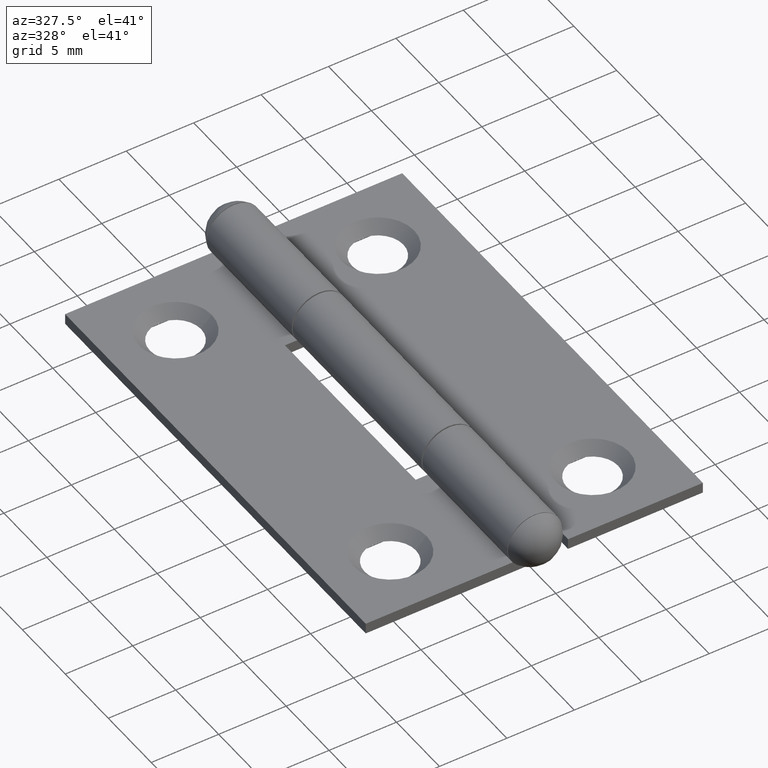
[diagram: clean part render]
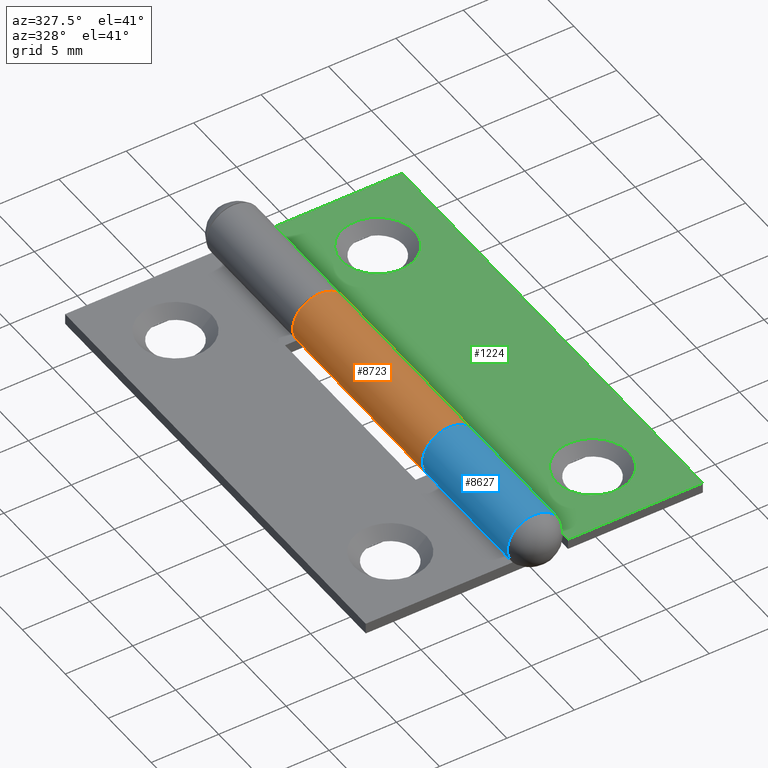
[diagram: same view with three faces highlighted in distinct colors, each labeled with its STEP entity id]
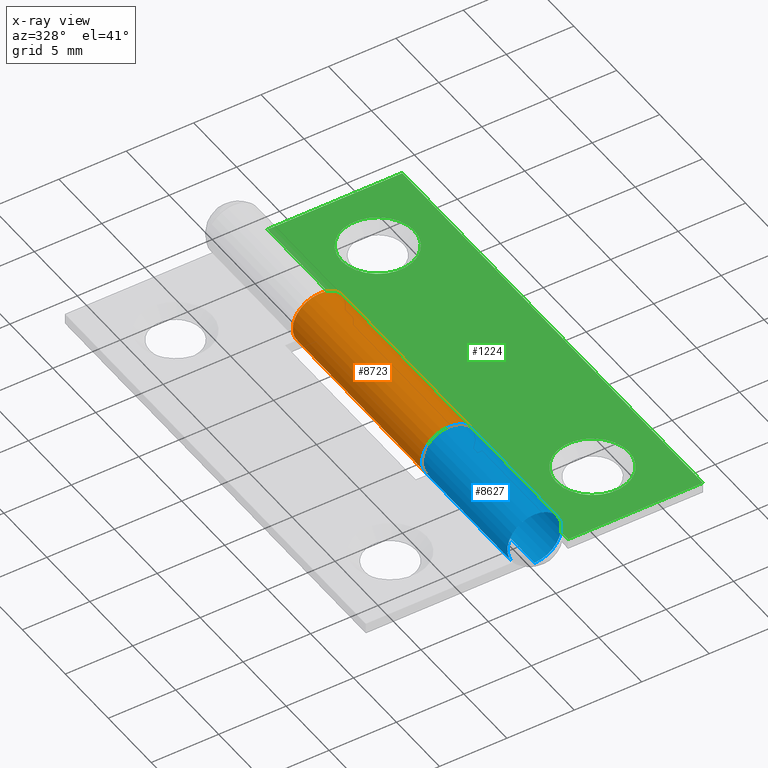
[diagram: x-ray of the same camera — body ghosted, the three highlighted faces saturated]
A machine part, auxiliary view with three faces highlighted in distinct colors.
The next image is the same camera in x-ray (body ghosted, the three faces saturated) — at least one of them is partly hidden behind the body in this view.
Their STEP definitions:

[orange] entity #8723 — the highlighted cylindrical surface (edge-blend (fillet) strip) has radius 2 mm, axis along (0, 1, -0).
#173 = DIRECTION ( 'NONE',  ( 0.000000000000000000, -1.000000000000000000, 0.000000000000000000 ) ) ;
#708 = DIRECTION ( 'NONE',  ( 0.000000000000000000, 0.000000000000000000, 1.000000000000000000 ) ) ;
#985 = CARTESIAN_POINT ( 'NONE',  ( -2.000000000000000000, 17.50000000000000000, 2.000000000000000444 ) ) ;
#1196 = VERTEX_POINT ( 'NONE', #5011 ) ;
#1353 = DIRECTION ( 'NONE',  ( 0.000000000000000000, 1.000000000000000000, -0.000000000000000000 ) ) ;
#1492 = ORIENTED_EDGE ( 'NONE', *, *, #3329, .T. ) ;
#1827 = ORIENTED_EDGE ( 'NONE', *, *, #4081, .F. ) ;
#2394 = VERTEX_POINT ( 'NONE', #6421 ) ;
#2768 = VERTEX_POINT ( 'NONE', #3055 ) ;
#3055 = CARTESIAN_POINT ( 'NONE',  ( -2.000000000000000000, -7.500000000000000000, 2.602085213965210149E-16 ) ) ;
#3209 = DIRECTION ( 'NONE',  ( 0.000000000000000000, 0.000000000000000000, -1.000000000000000000 ) ) ;
#3218 = CIRCLE ( 'NONE', #4766, 2.000000000000000000 ) ;
#3329 = EDGE_CURVE ( 'NONE', #1196, #2768, #8356, .T. ) ;
#3606 = ORIENTED_EDGE ( 'NONE', *, *, #7901, .T. ) ;
#3720 = VECTOR ( 'NONE', #4532, 1000.000000000000000 ) ;
#3817 = CARTESIAN_POINT ( 'NONE',  ( -2.000000000000000000, -7.500000000000000000, 2.000000000000000444 ) ) ;
#4069 = LINE ( 'NONE', #5968, #3720 ) ;
#4081 = EDGE_CURVE ( 'NONE', #9902, #2768, #8696, .T. ) ;
#4532 = DIRECTION ( 'NONE',  ( -0.000000000000000000, -1.000000000000000000, -0.000000000000000000 ) ) ;
#4766 = AXIS2_PLACEMENT_3D ( 'NONE', #8122, #173, #5684 ) ;
#5011 = CARTESIAN_POINT ( 'NONE',  ( -3.670329308849006544, -7.500000000000000000, 0.9000000000000001332 ) ) ;
#5228 = EDGE_LOOP ( 'NONE', ( #1827, #3606, #7404, #1492 ) ) ;
#5390 = AXIS2_PLACEMENT_3D ( 'NONE', #985, #7926, #3209 ) ;
#5684 = DIRECTION ( 'NONE',  ( 0.000000000000000000, 0.000000000000000000, -1.000000000000000000 ) ) ;
#5765 = CARTESIAN_POINT ( 'NONE',  ( -2.000000000000000000, 7.500000000000000000, 2.602085213965210149E-16 ) ) ;
#5879 = VECTOR ( 'NONE', #7444, 1000.000000000000000 ) ;
#5968 = CARTESIAN_POINT ( 'NONE',  ( -3.670329308849006544, 17.50000000000000000, 0.9000000000000002442 ) ) ;
#6123 = CARTESIAN_POINT ( 'NONE',  ( -2.000000000000000000, 17.50000000000000000, 0.000000000000000000 ) ) ;
#6421 = CARTESIAN_POINT ( 'NONE',  ( -3.670329308849006544, 7.500000000000000000, 0.9000000000000001332 ) ) ;
#6567 = CYLINDRICAL_SURFACE ( 'NONE', #5390, 2.000000000000000000 ) ;
#7404 = ORIENTED_EDGE ( 'NONE', *, *, #7635, .T. ) ;
#7444 = DIRECTION ( 'NONE',  ( -0.000000000000000000, -1.000000000000000000, -0.000000000000000000 ) ) ;
#7635 = EDGE_CURVE ( 'NONE', #2394, #1196, #4069, .T. ) ;
#7901 = EDGE_CURVE ( 'NONE', #9902, #2394, #3218, .T. ) ;
#7926 = DIRECTION ( 'NONE',  ( -0.000000000000000000, -1.000000000000000000, -0.000000000000000000 ) ) ;
#8122 = CARTESIAN_POINT ( 'NONE',  ( -2.000000000000000000, 7.500000000000000000, 2.000000000000000444 ) ) ;
#8356 = CIRCLE ( 'NONE', #8413, 1.999999999999999556 ) ;
#8413 = AXIS2_PLACEMENT_3D ( 'NONE', #3817, #1353, #708 ) ;
#8696 = LINE ( 'NONE', #6123, #5879 ) ;
#8723 = ADVANCED_FACE ( 'NONE', ( #9755 ), #6567, .T. ) ;
#9755 = FACE_OUTER_BOUND ( 'NONE', #5228, .T. ) ;
#9902 = VERTEX_POINT ( 'NONE', #5765 ) ;

[blue] entity #8627 — the highlighted cylindrical surface (edge-blend (fillet) strip) has radius 2 mm, axis along (-0, -1, -0).
#350 = EDGE_CURVE ( 'NONE', #6808, #6335, #7986, .T. ) ;
#388 = ORIENTED_EDGE ( 'NONE', *, *, #2989, .F. ) ;
#473 = DIRECTION ( 'NONE',  ( 0.000000000000000000, 0.000000000000000000, -1.000000000000000000 ) ) ;
#617 = CARTESIAN_POINT ( 'NONE',  ( -3.670329308849006544, -17.50000000000000000, 0.9000000000000002442 ) ) ;
#782 = CARTESIAN_POINT ( 'NONE',  ( -2.000000000000000000, 17.50000000000000000, 2.000000000000000444 ) ) ;
#1370 = FACE_OUTER_BOUND ( 'NONE', #10060, .T. ) ;
#1432 = CARTESIAN_POINT ( 'NONE',  ( -2.000000000000000000, -7.599999999999998757, 2.000000000000000444 ) ) ;
#1848 = CIRCLE ( 'NONE', #7652, 2.000000000000000000 ) ;
#2292 = VECTOR ( 'NONE', #3418, 1000.000000000000000 ) ;
#2555 = LINE ( 'NONE', #4059, #4710 ) ;
#2575 = VERTEX_POINT ( 'NONE', #617 ) ;
#2989 = EDGE_CURVE ( 'NONE', #6808, #8183, #2555, .T. ) ;
#3160 = DIRECTION ( 'NONE',  ( -0.000000000000000000, -1.000000000000000000, -0.000000000000000000 ) ) ;
#3168 = EDGE_CURVE ( 'NONE', #6335, #2575, #7595, .T. ) ;
#3407 = CARTESIAN_POINT ( 'NONE',  ( -2.000000000000000000, -17.50000000000000000, 0.000000000000000000 ) ) ;
#3418 = DIRECTION ( 'NONE',  ( -0.000000000000000000, -1.000000000000000000, -0.000000000000000000 ) ) ;
#3652 = ORIENTED_EDGE ( 'NONE', *, *, #9945, .T. ) ;
#4055 = AXIS2_PLACEMENT_3D ( 'NONE', #782, #3160, #6345 ) ;
#4059 = CARTESIAN_POINT ( 'NONE',  ( -2.000000000000000000, 17.50000000000000000, 0.000000000000000000 ) ) ;
#4664 = CYLINDRICAL_SURFACE ( 'NONE', #4055, 2.000000000000000000 ) ;
#4710 = VECTOR ( 'NONE', #5665, 1000.000000000000000 ) ;
#5031 = CARTESIAN_POINT ( 'NONE',  ( -3.670329308849006544, 17.50000000000000000, 0.9000000000000002442 ) ) ;
#5300 = ORIENTED_EDGE ( 'NONE', *, *, #350, .T. ) ;
#5619 = AXIS2_PLACEMENT_3D ( 'NONE', #1432, #7758, #8530 ) ;
#5665 = DIRECTION ( 'NONE',  ( -0.000000000000000000, -1.000000000000000000, -0.000000000000000000 ) ) ;
#6335 = VERTEX_POINT ( 'NONE', #7345 ) ;
#6345 = DIRECTION ( 'NONE',  ( 0.000000000000000000, 0.000000000000000000, -1.000000000000000000 ) ) ;
#6808 = VERTEX_POINT ( 'NONE', #9585 ) ;
#7345 = CARTESIAN_POINT ( 'NONE',  ( -3.670329308849006544, -7.599999999999998757, 0.9000000000000001332 ) ) ;
#7595 = LINE ( 'NONE', #5031, #2292 ) ;
#7622 = DIRECTION ( 'NONE',  ( 0.000000000000000000, 1.000000000000000000, -0.000000000000000000 ) ) ;
#7652 = AXIS2_PLACEMENT_3D ( 'NONE', #8382, #7622, #473 ) ;
#7758 = DIRECTION ( 'NONE',  ( 0.000000000000000000, -1.000000000000000000, 0.000000000000000000 ) ) ;
#7986 = CIRCLE ( 'NONE', #5619, 2.000000000000000000 ) ;
#8183 = VERTEX_POINT ( 'NONE', #3407 ) ;
#8382 = CARTESIAN_POINT ( 'NONE',  ( -2.000000000000000000, -17.50000000000000000, 2.000000000000000444 ) ) ;
#8530 = DIRECTION ( 'NONE',  ( 0.000000000000000000, 0.000000000000000000, -1.000000000000000000 ) ) ;
#8627 = ADVANCED_FACE ( 'NONE', ( #1370 ), #4664, .T. ) ;
#8685 = ORIENTED_EDGE ( 'NONE', *, *, #3168, .T. ) ;
#9585 = CARTESIAN_POINT ( 'NONE',  ( -2.000000000000000000, -7.599999999999999645, 2.602085213965211135E-16 ) ) ;
#9945 = EDGE_CURVE ( 'NONE', #2575, #8183, #1848, .T. ) ;
#10060 = EDGE_LOOP ( 'NONE', ( #388, #5300, #8685, #3652 ) ) ;

[green] entity #1224 — the highlighted planar face has unit normal (0, -0, -1).
#119 = VERTEX_POINT ( 'NONE', #9287 ) ;
#354 = CARTESIAN_POINT ( 'NONE',  ( -2.000000000000000000, 17.50000000000000000, 0.8000000000000001554 ) ) ;
#587 = CARTESIAN_POINT ( 'NONE',  ( -2.000000000000000000, -17.50000000000000000, 0.8000000000000001554 ) ) ;
#1083 = ORIENTED_EDGE ( 'NONE', *, *, #5828, .T. ) ;
#1192 = LINE ( 'NONE', #1929, #2545 ) ;
#1224 = ADVANCED_FACE ( 'NONE', ( #8324, #7937, #7580 ), #9923, .F. ) ;
#1536 = DIRECTION ( 'NONE',  ( -1.000000000000000000, 0.000000000000000000, 1.204669080539452055E-16 ) ) ;
#1617 = AXIS2_PLACEMENT_3D ( 'NONE', #10051, #7012, #2194 ) ;
#1751 = DIRECTION ( 'NONE',  ( -0.000000000000000000, -1.000000000000000000, -0.000000000000000000 ) ) ;
#1786 = CARTESIAN_POINT ( 'NONE',  ( -2.000000000000000000, 17.50000000000000000, 0.8000000000000001554 ) ) ;
#1792 = ORIENTED_EDGE ( 'NONE', *, *, #4288, .F. ) ;
#1929 = CARTESIAN_POINT ( 'NONE',  ( -2.000000000000000000, -7.500000000000000000, 0.8000000000000001554 ) ) ;
#2093 = DIRECTION ( 'NONE',  ( 1.000000000000000000, -0.000000000000000000, -1.127570259384924611E-16 ) ) ;
#2116 = EDGE_LOOP ( 'NONE', ( #8781 ) ) ;
#2117 = CARTESIAN_POINT ( 'NONE',  ( -2.000000000000000000, 7.500000000000000000, 0.8000000000000001554 ) ) ;
#2130 = AXIS2_PLACEMENT_3D ( 'NONE', #6077, #8606, #1536 ) ;
#2179 = CARTESIAN_POINT ( 'NONE',  ( -12.19999999999999929, 12.49999999999999822, 0.8000000000000013767 ) ) ;
#2194 = DIRECTION ( 'NONE',  ( -1.000000000000000000, 0.000000000000000000, 1.204669080539452055E-16 ) ) ;
#2213 = VERTEX_POINT ( 'NONE', #2179 ) ;
#2402 = ORIENTED_EDGE ( 'NONE', *, *, #7692, .T. ) ;
#2515 = EDGE_CURVE ( 'NONE', #9634, #4622, #1192, .T. ) ;
#2545 = VECTOR ( 'NONE', #3503, 1000.000000000000000 ) ;
#2690 = DIRECTION ( 'NONE',  ( 0.000000000000000000, 1.000000000000000000, 0.000000000000000000 ) ) ;
#2938 = CARTESIAN_POINT ( 'NONE',  ( -14.50000000000000000, 17.50000000000000000, 0.8000000000000015987 ) ) ;
#3065 = CARTESIAN_POINT ( 'NONE',  ( -4.499999999999995559, 17.50000000000000000, 0.8000000000000004885 ) ) ;
#3200 = EDGE_CURVE ( 'NONE', #9182, #119, #6021, .T. ) ;
#3503 = DIRECTION ( 'NONE',  ( 1.000000000000000000, -0.000000000000000000, -1.127570259384924611E-16 ) ) ;
#3542 = CARTESIAN_POINT ( 'NONE',  ( -4.500000000000002665, -17.50000000000000000, 0.8000000000000004885 ) ) ;
#4061 = CARTESIAN_POINT ( 'NONE',  ( -2.000000000000000000, 17.50000000000000000, 0.8000000000000001554 ) ) ;
#4288 = EDGE_CURVE ( 'NONE', #7782, #4622, #4983, .T. ) ;
#4354 = LINE ( 'NONE', #5185, #4469 ) ;
#4469 = VECTOR ( 'NONE', #2690, 1000.000000000000000 ) ;
#4488 = ORIENTED_EDGE ( 'NONE', *, *, #5199, .T. ) ;
#4530 = EDGE_CURVE ( 'NONE', #119, #7979, #7346, .T. ) ;
#4622 = VERTEX_POINT ( 'NONE', #8894 ) ;
#4983 = LINE ( 'NONE', #1786, #9938 ) ;
#4999 = EDGE_CURVE ( 'NONE', #5163, #5163, #7330, .T. ) ;
#5102 = DIRECTION ( 'NONE',  ( -0.000000000000000000, -1.000000000000000000, -0.000000000000000000 ) ) ;
#5163 = VERTEX_POINT ( 'NONE', #6891 ) ;
#5185 = CARTESIAN_POINT ( 'NONE',  ( -4.500000000000000888, 17.50000000000000000, 0.8000000000000004885 ) ) ;
#5199 = EDGE_CURVE ( 'NONE', #7888, #6572, #4354, .T. ) ;
#5586 = CIRCLE ( 'NONE', #1617, 2.699999999999993960 ) ;
#5666 = DIRECTION ( 'NONE',  ( 1.000000000000000000, -0.000000000000000000, -1.127570259384924611E-16 ) ) ;
#5767 = ORIENTED_EDGE ( 'NONE', *, *, #4530, .T. ) ;
#5828 = EDGE_CURVE ( 'NONE', #2213, #2213, #5586, .T. ) ;
#5997 = ORIENTED_EDGE ( 'NONE', *, *, #6065, .F. ) ;
#6021 = LINE ( 'NONE', #7599, #6255 ) ;
#6065 = EDGE_CURVE ( 'NONE', #9182, #6572, #6104, .T. ) ;
#6077 = CARTESIAN_POINT ( 'NONE',  ( -9.500000000000001776, -12.50000000000000178, 0.8000000000000010436 ) ) ;
#6080 = EDGE_LOOP ( 'NONE', ( #2402, #4488, #5997, #10148, #5767, #6310, #9299, #1792 ) ) ;
#6104 = LINE ( 'NONE', #4061, #7185 ) ;
#6202 = LINE ( 'NONE', #2117, #8770 ) ;
#6255 = VECTOR ( 'NONE', #5102, 1000.000000000000000 ) ;
#6310 = ORIENTED_EDGE ( 'NONE', *, *, #6559, .T. ) ;
#6559 = EDGE_CURVE ( 'NONE', #7979, #9634, #9638, .T. ) ;
#6572 = VERTEX_POINT ( 'NONE', #9263 ) ;
#6662 = DIRECTION ( 'NONE',  ( -1.127570259384924611E-16, 0.000000000000000000, -1.000000000000000000 ) ) ;
#6837 = VECTOR ( 'NONE', #10092, 1000.000000000000000 ) ;
#6891 = CARTESIAN_POINT ( 'NONE',  ( -12.19999999999999574, -12.50000000000000178, 0.8000000000000013767 ) ) ;
#7004 = CARTESIAN_POINT ( 'NONE',  ( -4.500000000000000000, -7.500000000000000000, 0.8000000000000003775 ) ) ;
#7012 = DIRECTION ( 'NONE',  ( -1.127570259384924611E-16, 0.000000000000000000, -1.000000000000000000 ) ) ;
#7185 = VECTOR ( 'NONE', #5666, 1000.000000000000000 ) ;
#7330 = CIRCLE ( 'NONE', #2130, 2.699999999999993960 ) ;
#7346 = LINE ( 'NONE', #587, #8209 ) ;
#7544 = AXIS2_PLACEMENT_3D ( 'NONE', #354, #6662, #9102 ) ;
#7580 = FACE_OUTER_BOUND ( 'NONE', #6080, .T. ) ;
#7599 = CARTESIAN_POINT ( 'NONE',  ( -14.50000000000000000, 17.50000000000000000, 0.8000000000000015987 ) ) ;
#7636 = DIRECTION ( 'NONE',  ( -1.000000000000000000, 0.000000000000000000, 1.127570259384924611E-16 ) ) ;
#7687 = CARTESIAN_POINT ( 'NONE',  ( -4.500000000000000000, 7.500000000000000000, 0.8000000000000003775 ) ) ;
#7692 = EDGE_CURVE ( 'NONE', #7782, #7888, #6202, .T. ) ;
#7782 = VERTEX_POINT ( 'NONE', #9241 ) ;
#7888 = VERTEX_POINT ( 'NONE', #7687 ) ;
#7937 = FACE_BOUND ( 'NONE', #9622, .T. ) ;
#7979 = VERTEX_POINT ( 'NONE', #3542 ) ;
#8209 = VECTOR ( 'NONE', #2093, 1000.000000000000000 ) ;
#8324 = FACE_BOUND ( 'NONE', #2116, .T. ) ;
#8606 = DIRECTION ( 'NONE',  ( -1.127570259384924611E-16, 0.000000000000000000, -1.000000000000000000 ) ) ;
#8770 = VECTOR ( 'NONE', #7636, 1000.000000000000000 ) ;
#8781 = ORIENTED_EDGE ( 'NONE', *, *, #4999, .T. ) ;
#8894 = CARTESIAN_POINT ( 'NONE',  ( -2.000000000000000000, -7.500000000000000000, 0.8000000000000001554 ) ) ;
#9102 = DIRECTION ( 'NONE',  ( -1.000000000000000000, 0.000000000000000000, 1.127570259384924611E-16 ) ) ;
#9182 = VERTEX_POINT ( 'NONE', #2938 ) ;
#9241 = CARTESIAN_POINT ( 'NONE',  ( -2.000000000000000000, 7.500000000000000000, 0.8000000000000001554 ) ) ;
#9263 = CARTESIAN_POINT ( 'NONE',  ( -4.500000000000000000, 17.50000000000000000, 0.8000000000000008216 ) ) ;
#9287 = CARTESIAN_POINT ( 'NONE',  ( -14.50000000000000000, -17.50000000000000000, 0.8000000000000015987 ) ) ;
#9299 = ORIENTED_EDGE ( 'NONE', *, *, #2515, .T. ) ;
#9622 = EDGE_LOOP ( 'NONE', ( #1083 ) ) ;
#9634 = VERTEX_POINT ( 'NONE', #7004 ) ;
#9638 = LINE ( 'NONE', #3065, #6837 ) ;
#9923 = PLANE ( 'NONE',  #7544 ) ;
#9938 = VECTOR ( 'NONE', #1751, 1000.000000000000000 ) ;
#10051 = CARTESIAN_POINT ( 'NONE',  ( -9.500000000000005329, 12.49999999999999822, 0.8000000000000010436 ) ) ;
#10092 = DIRECTION ( 'NONE',  ( 1.734723475976806848E-16, 1.000000000000000000, -1.956022599768286140E-32 ) ) ;
#10148 = ORIENTED_EDGE ( 'NONE', *, *, #3200, .T. ) ;